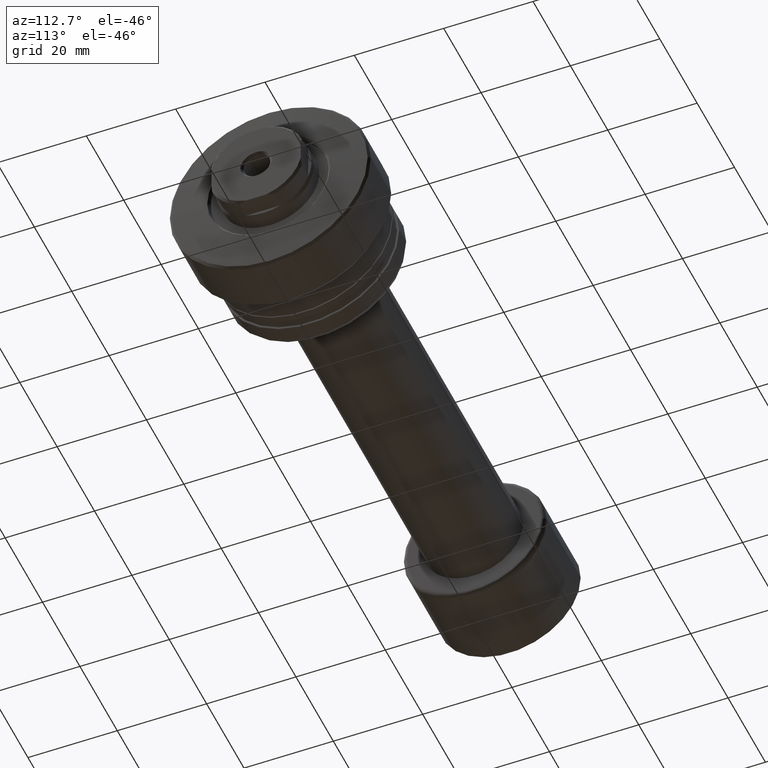
[diagram: clean part render]
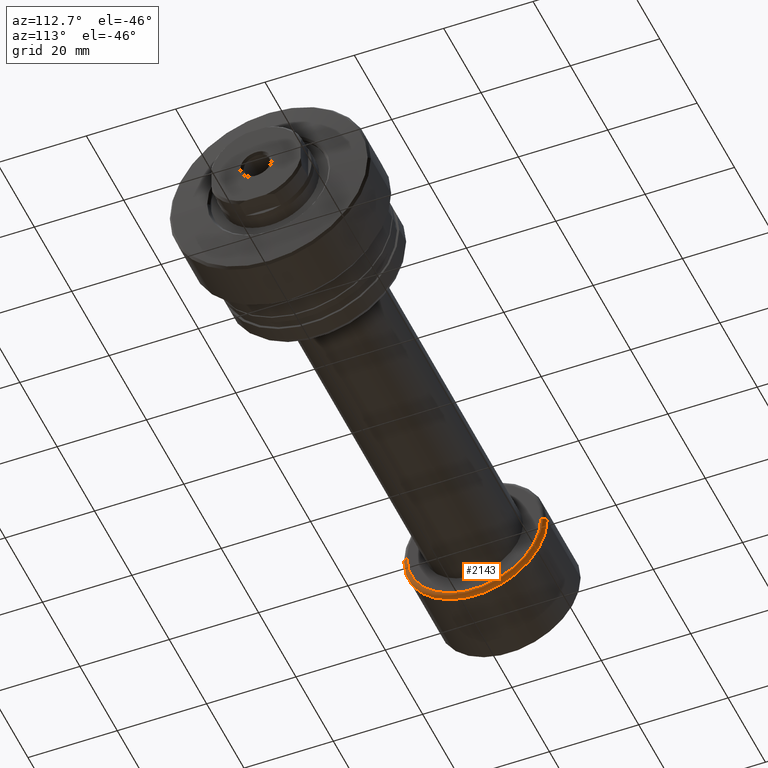
[diagram: same view with one face highlighted and labeled with its STEP entity id]
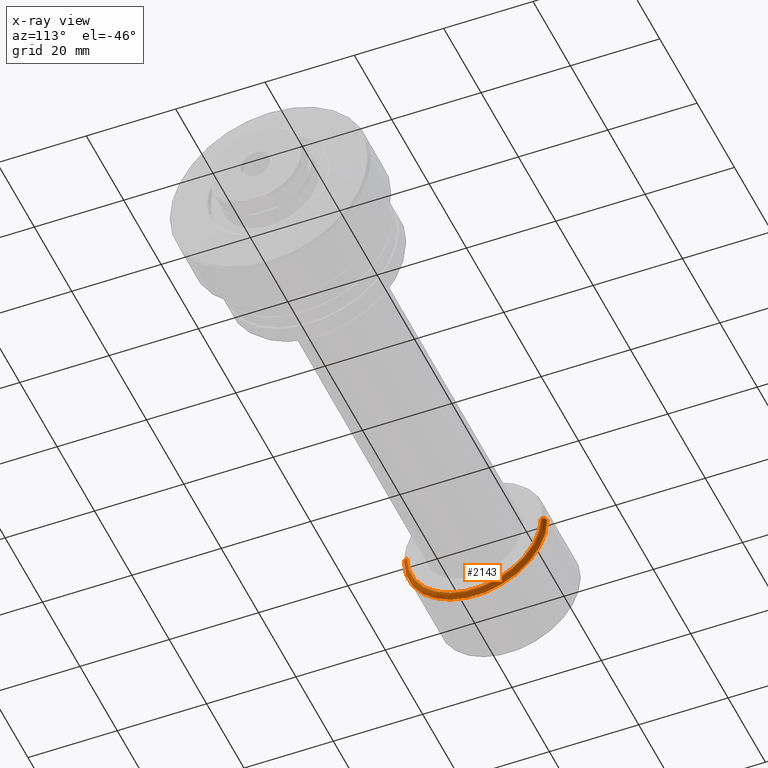
[diagram: x-ray of the same camera — body ghosted, the highlighted face saturated]
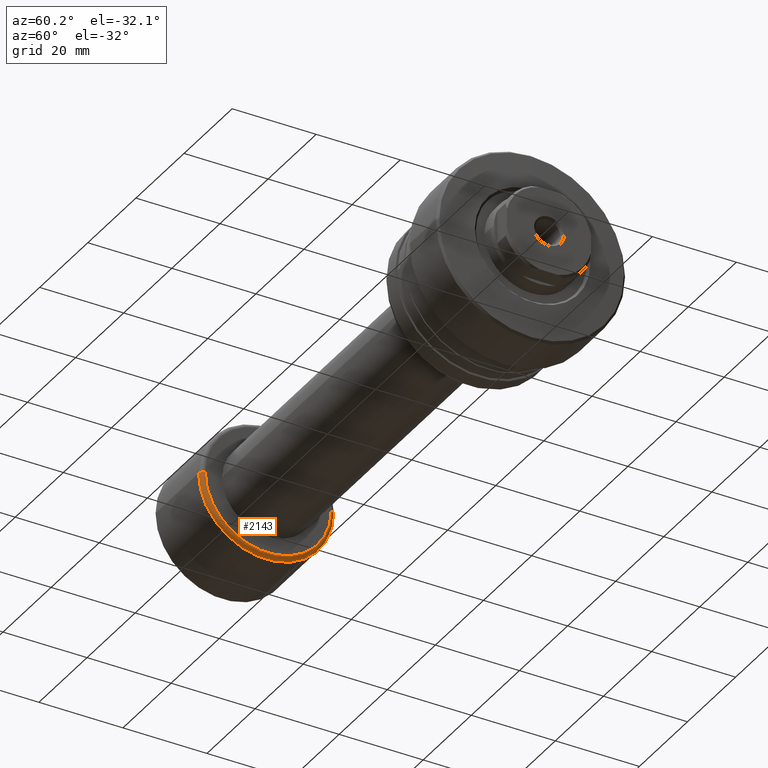
[diagram: same view with one face highlighted and labeled with its STEP entity id]
A machine part, auxiliary view. The second image highlights one B-rep face of the part: STEP entity #2143.
The next image is the same camera in x-ray: the body ghosted, the highlighted face saturated — about 0% of this face is hidden behind the body in this view.
A second angle (auxiliary view) of the same face is appended — the face is thin or edge-on in the first view.
In plain terms, the highlighted toroidal blend (fillet) surface has major radius 15 mm and minor (blend) radius 1 mm.
Its self-contained STEP definition (entity closure, byte-faithful):
#17 = AXIS2_PLACEMENT_3D ( 'NONE', #1201, #1552, #1350 ) ;
#199 = AXIS2_PLACEMENT_3D ( 'NONE', #784, #1559, #1597 ) ;
#202 = DIRECTION ( 'NONE',  ( 0.000000000000000000, -1.000000000000000000, -1.224646799147353454E-16 ) ) ;
#328 = CARTESIAN_POINT ( 'NONE',  ( 20.39999999999999503, 2.181866337020893623E-16, 0.000000000000000000 ) ) ;
#391 = AXIS2_PLACEMENT_3D ( 'NONE', #2106, #2244, #202 ) ;
#467 = EDGE_CURVE ( 'NONE', #1981, #1802, #901, .T. ) ;
#615 = ORIENTED_EDGE ( 'NONE', *, *, #987, .F. ) ;
#639 = CARTESIAN_POINT ( 'NONE',  ( 19.39999999999999503, 16.00000000000000000, 1.959434878635765131E-15 ) ) ;
#733 = DIRECTION ( 'NONE',  ( -1.000000000000000000, -1.069542322069065801E-17, -0.000000000000000000 ) ) ;
#780 = CIRCLE ( 'NONE', #391, 1.000000000000000888 ) ;
#784 = CARTESIAN_POINT ( 'NONE',  ( 19.39999999999999503, 0.000000000000000000, 0.000000000000000000 ) ) ;
#854 = VERTEX_POINT ( 'NONE', #639 ) ;
#901 = CIRCLE ( 'NONE', #2376, 15.00000000000000000 ) ;
#987 = EDGE_CURVE ( 'NONE', #854, #1242, #2051, .T. ) ;
#1173 = CARTESIAN_POINT ( 'NONE',  ( 19.39999999999999503, -16.00000000000000000, 0.000000000000000000 ) ) ;
#1201 = CARTESIAN_POINT ( 'NONE',  ( 19.39999999999999503, -15.00000000000000000, 0.000000000000000000 ) ) ;
#1242 = VERTEX_POINT ( 'NONE', #1173 ) ;
#1350 = DIRECTION ( 'NONE',  ( -1.000000000000000000, 0.000000000000000000, 0.000000000000000000 ) ) ;
#1374 = ORIENTED_EDGE ( 'NONE', *, *, #1776, .T. ) ;
#1442 = CARTESIAN_POINT ( 'NONE',  ( 20.39999999999999503, -15.00000000000000000, 0.000000000000000000 ) ) ;
#1479 = CARTESIAN_POINT ( 'NONE',  ( 20.39999999999999503, 15.00000000000000000, 1.898202538678397163E-15 ) ) ;
#1481 = DIRECTION ( 'NONE',  ( 0.000000000000000000, -1.000000000000000000, 0.000000000000000000 ) ) ;
#1552 = DIRECTION ( 'NONE',  ( 0.000000000000000000, 0.000000000000000000, -1.000000000000000000 ) ) ;
#1559 = DIRECTION ( 'NONE',  ( -1.000000000000000000, -1.069542322069065801E-17, -0.000000000000000000 ) ) ;
#1582 = EDGE_LOOP ( 'NONE', ( #2074, #1587, #1374, #615 ) ) ;
#1587 = ORIENTED_EDGE ( 'NONE', *, *, #467, .T. ) ;
#1597 = DIRECTION ( 'NONE',  ( 1.069542322069065801E-17, -1.000000000000000000, 0.000000000000000000 ) ) ;
#1665 = DIRECTION ( 'NONE',  ( -1.000000000000000000, -1.069542322069065801E-17, -0.000000000000000000 ) ) ;
#1743 = FACE_OUTER_BOUND ( 'NONE', #1582, .T. ) ;
#1776 = EDGE_CURVE ( 'NONE', #1802, #1242, #1819, .T. ) ;
#1802 = VERTEX_POINT ( 'NONE', #1442 ) ;
#1819 = CIRCLE ( 'NONE', #17, 1.000000000000000888 ) ;
#1973 = AXIS2_PLACEMENT_3D ( 'NONE', #2440, #1665, #2039 ) ;
#1981 = VERTEX_POINT ( 'NONE', #1479 ) ;
#1986 = EDGE_CURVE ( 'NONE', #1981, #854, #780, .T. ) ;
#2039 = DIRECTION ( 'NONE',  ( 0.000000000000000000, -1.000000000000000000, 0.000000000000000000 ) ) ;
#2051 = CIRCLE ( 'NONE', #1973, 16.00000000000000000 ) ;
#2074 = ORIENTED_EDGE ( 'NONE', *, *, #1986, .F. ) ;
#2106 = CARTESIAN_POINT ( 'NONE',  ( 19.39999999999999503, 15.00000000000000000, 1.836970198721029589E-15 ) ) ;
#2143 = ADVANCED_FACE ( 'NONE', ( #1743 ), #2373, .T. ) ;
#2244 = DIRECTION ( 'NONE',  ( 1.309811581274509052E-33, -1.224646799147353207E-16, 1.000000000000000000 ) ) ;
#2373 = TOROIDAL_SURFACE ( 'NONE', #199, 15.00000000000000000, 1.000000000000000888 ) ;
#2376 = AXIS2_PLACEMENT_3D ( 'NONE', #328, #733, #1481 ) ;
#2440 = CARTESIAN_POINT ( 'NONE',  ( 19.39999999999999503, 2.074912104813986935E-16, 0.000000000000000000 ) ) ;